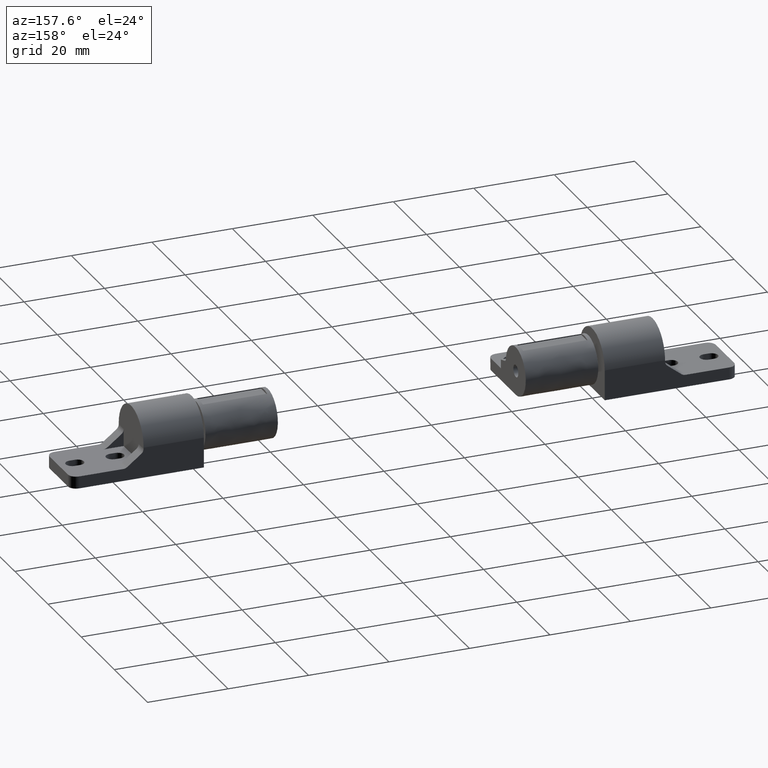
[diagram: clean part render]
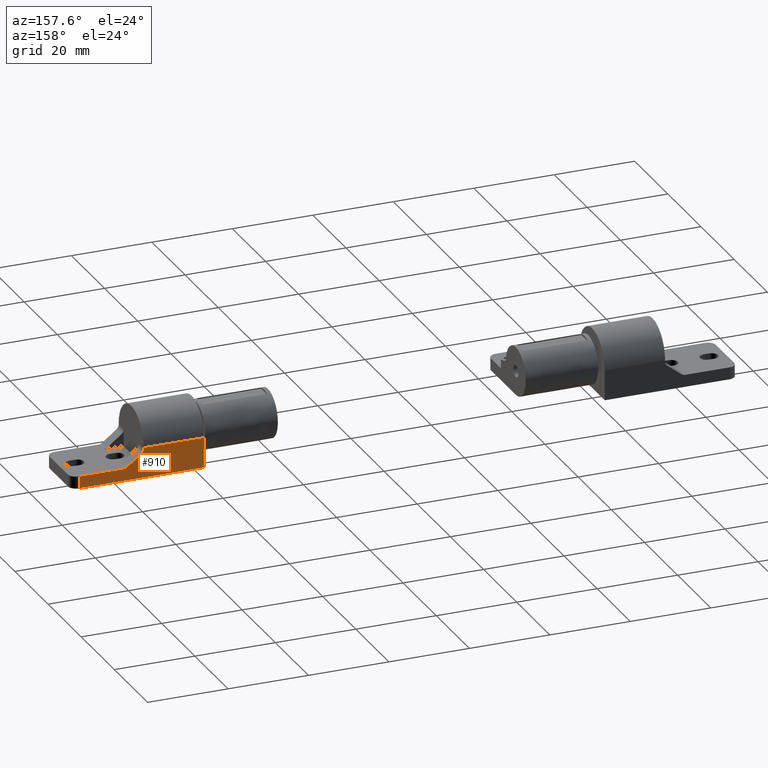
[diagram: same view with one face highlighted and labeled with its STEP entity id]
A machine part, auxiliary view. The second image highlights one B-rep face of the part: STEP entity #910.
In plain terms, the highlighted face is a freeform B-spline surface patch.
Its self-contained STEP definition (entity closure, byte-faithful):
#158=CARTESIAN_POINT('',(115.196763148576490,7.500000000000000,-1.450403225268736));
#159=VERTEX_POINT('',#158);
#165=CARTESIAN_POINT('',(114.617673858945000,7.500000000000000,-0.266374735945772));
#166=VERTEX_POINT('',#165);
#167=CARTESIAN_POINT('',(114.617673858945000,7.500000000000000,-0.266374735945772));
#168=CARTESIAN_POINT('',(114.617673858945040,7.500000000000000,-1.000000609208193));
#169=CARTESIAN_POINT('',(115.196763148576490,7.500000000000000,-1.450403225268760));
#177=(BOUNDED_CURVE()B_SPLINE_CURVE(2,(#167,#168,#169),.UNSPECIFIED.,.F.,.U.)CURVE()GEOMETRIC_REPRESENTATION_ITEM()QUASI_UNIFORM_CURVE()RATIONAL_B_SPLINE_CURVE((1.0,0.898315221283442,1.0))REPRESENTATION_ITEM(''));
#178=EDGE_CURVE('',#166,#159,#177,.T.);
#219=CARTESIAN_POINT('',(119.632336198443500,7.500000000000000,-4.500000000000000));
#220=VERTEX_POINT('',#219);
#226=CARTESIAN_POINT('',(118.711425488074990,7.500000000000000,-4.184028489322980));
#227=VERTEX_POINT('',#226);
#228=CARTESIAN_POINT('',(118.711425488074990,7.500000000000000,-4.184028489323021));
#229=CARTESIAN_POINT('',(119.117674721843040,7.500000000000000,-4.500000000000001));
#230=CARTESIAN_POINT('',(119.632336198443500,7.500000000000000,-4.500000000000001));
#238=(BOUNDED_CURVE()B_SPLINE_CURVE(2,(#228,#229,#230),.UNSPECIFIED.,.F.,.U.)CURVE()GEOMETRIC_REPRESENTATION_ITEM()QUASI_UNIFORM_CURVE()RATIONAL_B_SPLINE_CURVE((1.0,0.945873227820554,1.0))REPRESENTATION_ITEM(''));
#239=EDGE_CURVE('',#227,#220,#238,.T.);
#265=CARTESIAN_POINT('',(130.617673858945010,7.500000000000000,-4.500000000000000));
#266=VERTEX_POINT('',#265);
#287=CARTESIAN_POINT('',(130.617673858945010,7.500000000000000,-7.500000000000000));
#288=VERTEX_POINT('',#287);
#302=CARTESIAN_POINT('',(130.617673858945010,7.500000000000000,-4.500000000000000));
#303=CARTESIAN_POINT('',(130.617673858945010,7.500000000000000,-7.500000000000000));
#304=QUASI_UNIFORM_CURVE('',1,(#302,#303),.UNSPECIFIED.,.F.,.U.);
#305=EDGE_CURVE('',#266,#288,#304,.T.);
#756=CARTESIAN_POINT('',(115.196763148576490,7.500000000000000,-1.450403225268736));
#757=CARTESIAN_POINT('',(118.711425488074990,7.500000000000000,-4.184028489322980));
#758=QUASI_UNIFORM_CURVE('',1,(#756,#757),.UNSPECIFIED.,.F.,.U.);
#759=EDGE_CURVE('',#159,#227,#758,.T.);
#833=CARTESIAN_POINT('',(99.617673858945068,7.500000000000000,0.0));
#834=VERTEX_POINT('',#833);
#854=CARTESIAN_POINT('',(99.617673858945068,7.500000000000000,-7.500000000000000));
#855=VERTEX_POINT('',#854);
#856=CARTESIAN_POINT('',(99.617673858945068,7.500000000000000,-7.500000000000000));
#857=CARTESIAN_POINT('',(99.617673858945068,7.500000000000000,0.0));
#858=QUASI_UNIFORM_CURVE('',1,(#856,#857),.UNSPECIFIED.,.F.,.U.);
#859=EDGE_CURVE('',#855,#834,#858,.T.);
#876=CARTESIAN_POINT('',(98.069223919029071,7.500000000000000,0.374624985463545));
#877=CARTESIAN_POINT('',(98.069223919029071,7.500000000000000,-7.874625186629221));
#878=CARTESIAN_POINT('',(132.166124630345910,7.500000000000000,0.374624985463545));
#879=CARTESIAN_POINT('',(132.166124630345910,7.500000000000000,-7.874625186629221));
#880=B_SPLINE_SURFACE_WITH_KNOTS('',1,1,((#876,#878),(#877,#879)),.UNSPECIFIED.,.F.,.F.,.U.,(2,2),(2,2),(0.0,8.249250172092767),(0.0,34.096900711316778),.UNSPECIFIED.);
#881=CARTESIAN_POINT('',(130.617673858945010,7.500000000000000,-4.500000000000000));
#882=CARTESIAN_POINT('',(119.632336198443500,7.500000000000000,-4.500000000000000));
#883=QUASI_UNIFORM_CURVE('',1,(#881,#882),.UNSPECIFIED.,.F.,.U.);
#884=EDGE_CURVE('',#266,#220,#883,.T.);
#885=ORIENTED_EDGE('',*,*,#884,.F.);
#886=ORIENTED_EDGE('',*,*,#305,.T.);
#887=CARTESIAN_POINT('',(130.617673858945010,7.500000000000000,-7.500000000000000));
#888=CARTESIAN_POINT('',(99.617673858945068,7.500000000000000,-7.500000000000000));
#889=QUASI_UNIFORM_CURVE('',1,(#887,#888),.UNSPECIFIED.,.F.,.U.);
#890=EDGE_CURVE('',#288,#855,#889,.T.);
#891=ORIENTED_EDGE('',*,*,#890,.T.);
#892=ORIENTED_EDGE('',*,*,#859,.T.);
#893=CARTESIAN_POINT('',(114.617673858945000,7.500000000000000,0.0));
#894=VERTEX_POINT('',#893);
#895=CARTESIAN_POINT('',(114.617673858945000,7.500000000000000,0.0));
#896=CARTESIAN_POINT('',(99.617673858945068,7.500000000000000,0.0));
#897=QUASI_UNIFORM_CURVE('',1,(#895,#896),.UNSPECIFIED.,.F.,.U.);
#898=EDGE_CURVE('',#894,#834,#897,.T.);
#899=ORIENTED_EDGE('',*,*,#898,.F.);
#900=CARTESIAN_POINT('',(114.617673858945000,7.500000000000000,-0.266374735945772));
#901=CARTESIAN_POINT('',(114.617673858945000,7.500000000000000,0.0));
#902=QUASI_UNIFORM_CURVE('',1,(#900,#901),.UNSPECIFIED.,.F.,.U.);
#903=EDGE_CURVE('',#166,#894,#902,.T.);
#904=ORIENTED_EDGE('',*,*,#903,.F.);
#905=ORIENTED_EDGE('',*,*,#178,.T.);
#906=ORIENTED_EDGE('',*,*,#759,.T.);
#907=ORIENTED_EDGE('',*,*,#239,.T.);
#908=EDGE_LOOP('',(#885,#886,#891,#892,#899,#904,#905,#906,#907));
#909=FACE_OUTER_BOUND('',#908,.T.);
#910=ADVANCED_FACE('',(#909),#880,.F.);